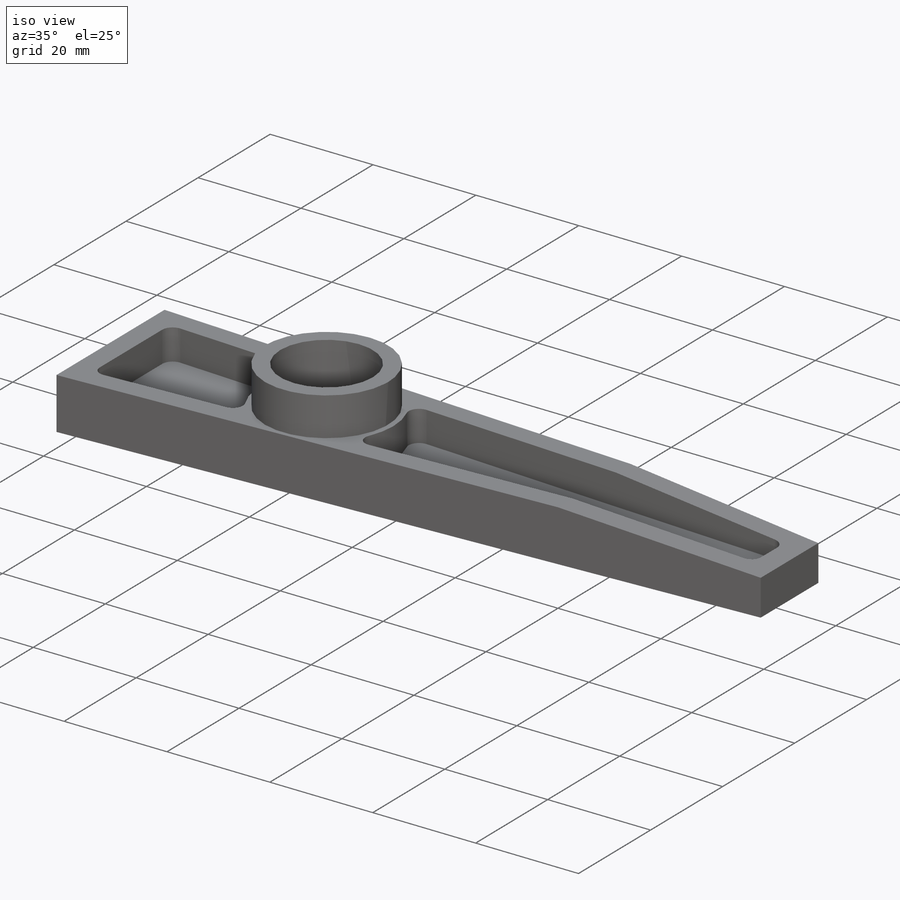
[diagram: iso view]
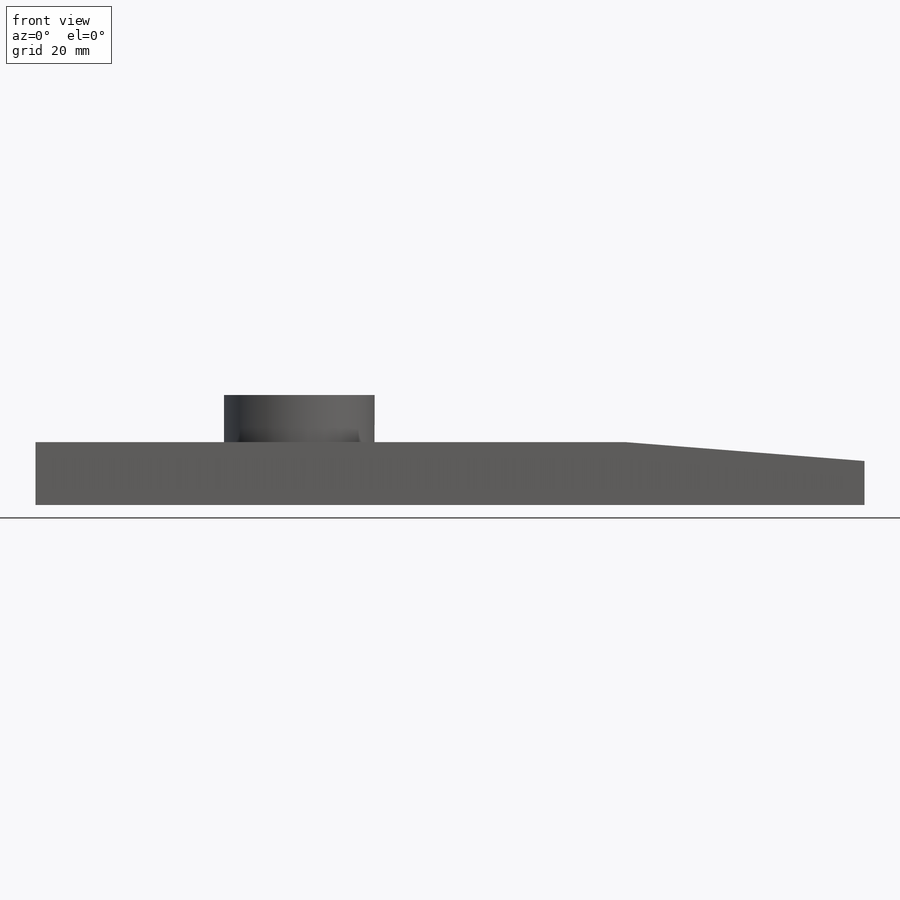
[diagram: front view]
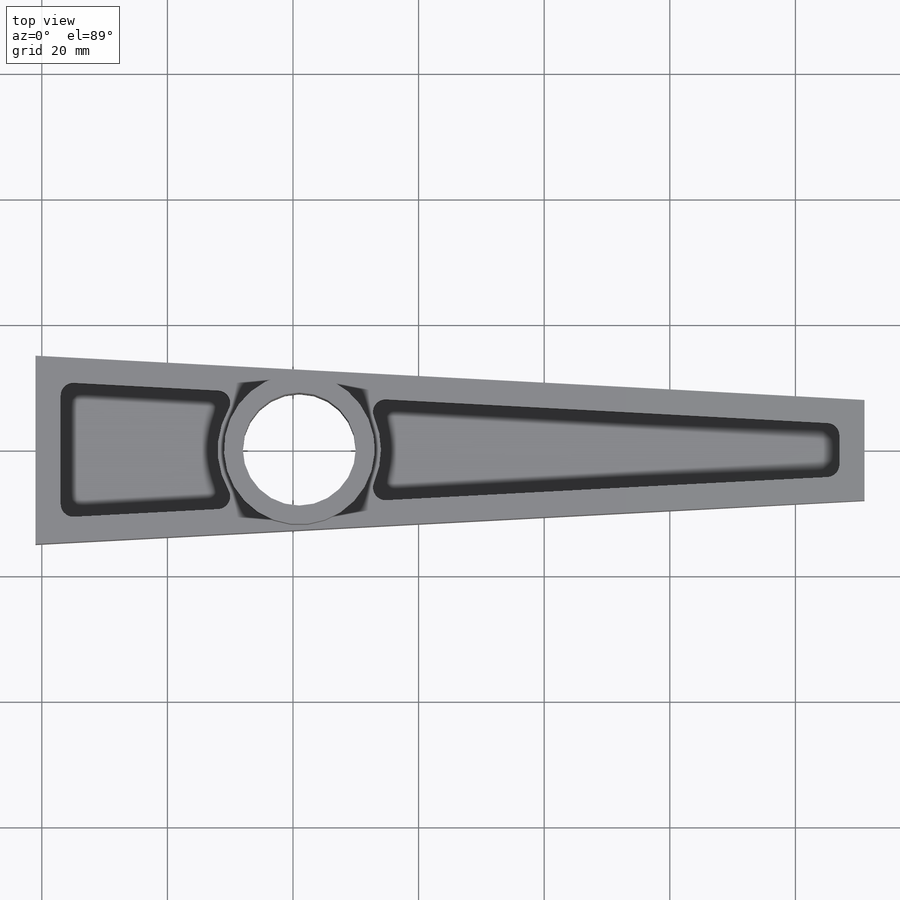
[diagram: top view]
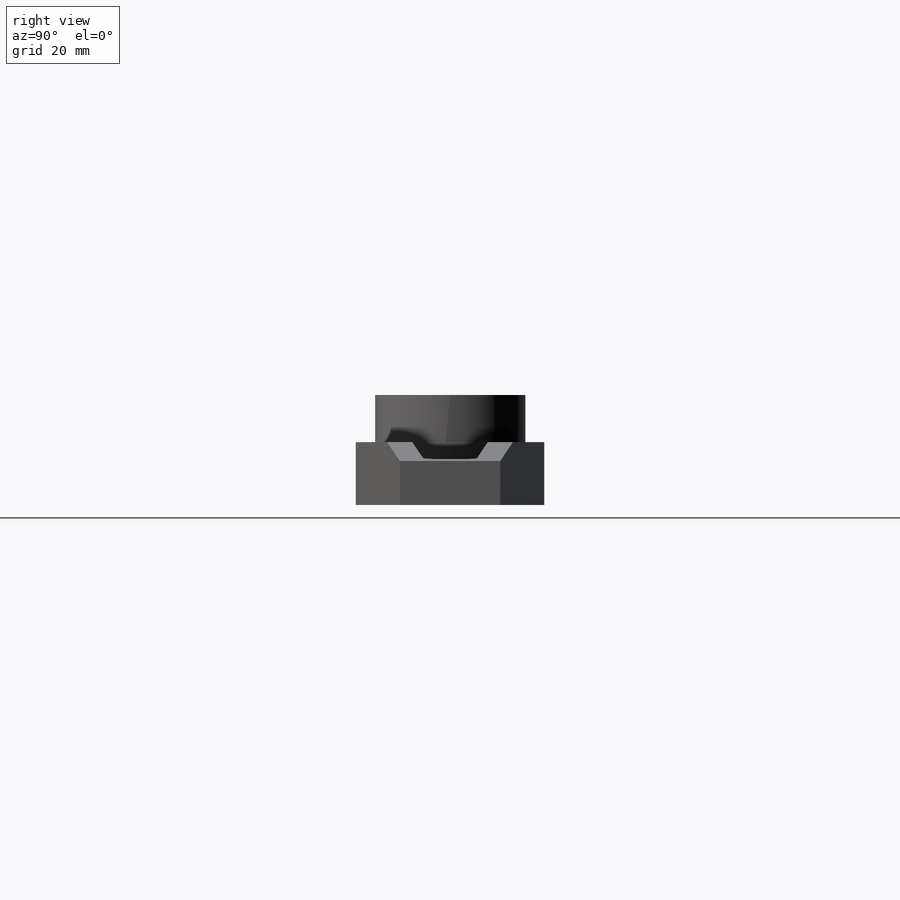
[diagram: right view]
SOLIDWORKS PART (.sldprt)
format: sldprt  version: not decoded by parser v0  size: 207,360 bytes
history: native  units: mm
features: sketch x3, material x1, extrude x1, shell x1, fillet x1, cut_extrude x1 (+11 scaffold rows collapsed)
feature tree (19):
  scaffold x11  (default folders/planes/origin — collapsed)
  material  "Brass"
  sketch  "Sketch1"  dims[c1.D1=18.0mm c1.D7=6.0mm c1.D2=1.0mm c1.D3=8.0mm c1.D4=15.0mm c1.D5=8.0mm c2.D5=93.0deg c2.D6=90.0mm c3.D5=90.0mm c3.D7=90.0mm c3.D6=42.0mm c3.D4=15.0mm c3.D3=15.0mm c4.D4=8.0mm]
  extrude  "Boss-Extrude1"  Depth=10mm
  shell  "Shell1"  Thickness=4mm
  sketch  "Sketch1<2>"  dims[D1=17.5mm D5=3.0mm D6=1.0mm D7=5.0mm]
  fillet  "Fillet1"  Radius=2mm
  sketch  "Sketch2"  dims[c1.D1=3.0mm c1.D2=38.0mm c2.D1=3.0mm c2.D2=38.0mm]
  cut_extrude  "Cut-Extrude1"  [1 undecoded]
decode coverage: 6 of 7 modeling features carry decoded parameters
note: 1 parameter value undecoded
note: suppression state not decoded; provenance and decode notes live in map.json
